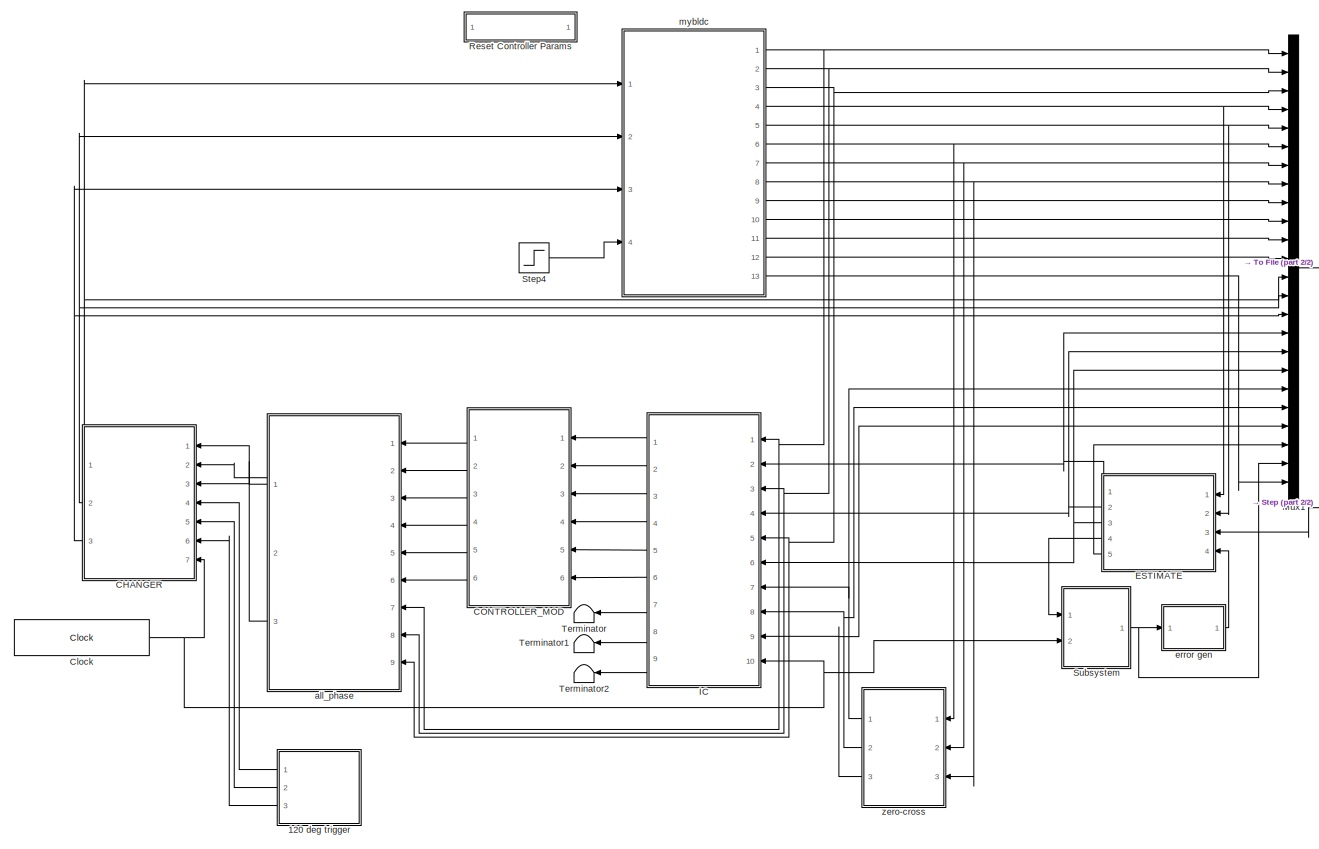
[diagram: root canvas - part 1/2, most of the canvas]
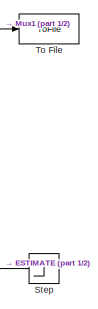
[diagram: root canvas - part 2/2, middle right region]
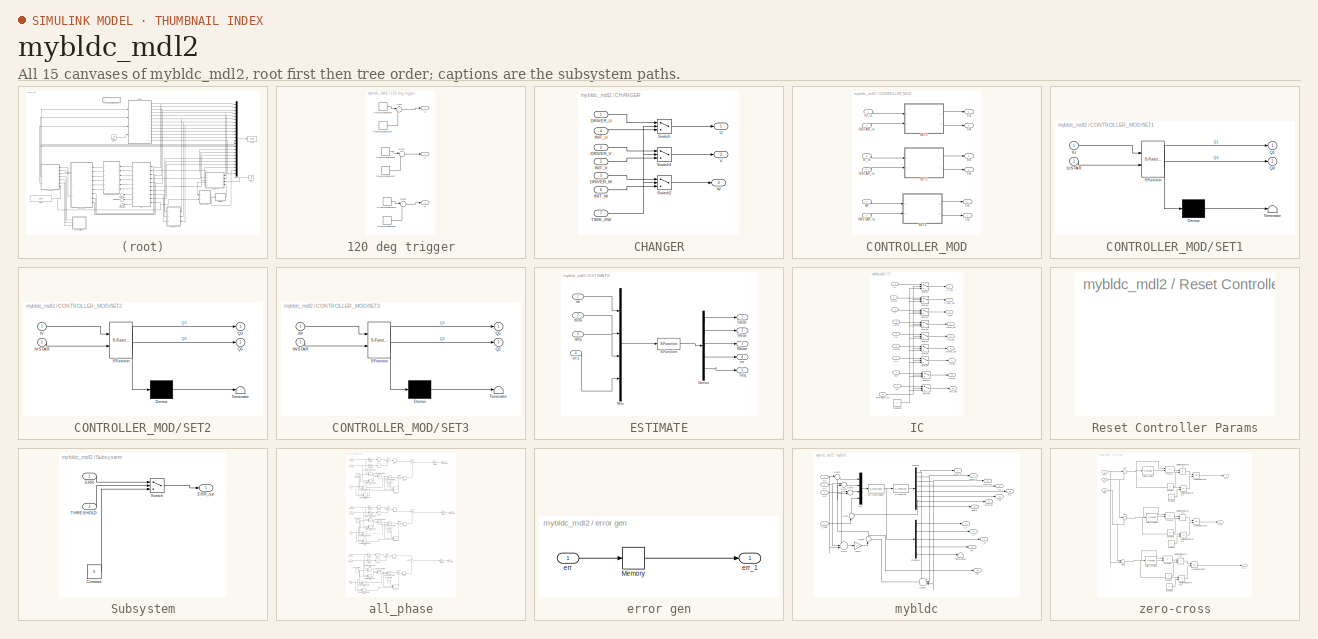
[diagram: thumbnail index - all 15 canvases of the model, root first then tree order]
MODEL mybldc_mdl2
KIND model
BLOCK [SubSystem] 120 deg trigger
  Ports = [0, 3]
  RequestExecContextInheritance = off
  SID = 1
BLOCK [DiscretePulseGenerator] 120 deg trigger/Pulse\nGenerator
  Amplitude = V
  Period = T
  PhaseDelay = T/3
  Ports = [0, 1]
  PulseType = Time based
  PulseWidth = 200/3
  SID = 2
BLOCK [DiscretePulseGenerator] 120 deg trigger/Pulse\nGenerator1
  Amplitude = -2*V
  Period = 2*T
  PhaseDelay = -2*T/3
  Ports = [0, 1]
  PulseType = Time based
  PulseWidth = 100/3
  SID = 3
BLOCK [DiscretePulseGenerator] 120 deg trigger/Pulse\nGenerator2
  Amplitude = V
  Period = T
  Ports = [0, 1]
  PulseType = Time based
  PulseWidth = 200/3
  SID = 4
BLOCK [DiscretePulseGenerator] 120 deg trigger/Pulse\nGenerator3
  Amplitude = -2*V
  Period = 2*T
  Ports = [0, 1]
  PulseType = Time based
  PulseWidth = 100/3
  SID = 5
BLOCK [DiscretePulseGenerator] 120 deg trigger/Pulse\nGenerator4
  Amplitude = V
  Period = T
  PhaseDelay = -T/3
  Ports = [0, 1]
  PulseType = Time based
  PulseWidth = 200/3
  SID = 6
BLOCK [DiscretePulseGenerator] 120 deg trigger/Pulse\nGenerator5
  Amplitude = -2*V
  Period = 2*T
  PhaseDelay = 2*T/3
  Ports = [0, 1]
  PulseType = Time based
  PulseWidth = 100/3
  SID = 7
BLOCK [Sum] 120 deg trigger/Sum
  IconShape = round
  Inputs = |++
  Ports = [2, 1]
  SID = 8
BLOCK [Sum] 120 deg trigger/Sum1
  IconShape = round
  Inputs = |++
  Ports = [2, 1]
  SID = 9
BLOCK [Sum] 120 deg trigger/Sum2
  IconShape = round
  Inputs = |++
  Ports = [2, 1]
  SID = 10
BLOCK [Outport] 120 deg trigger/U
  IconDisplay = Port number
  SID = 11
BLOCK [Outport] 120 deg trigger/V
  IconDisplay = Port number
  Port = 2
  SID = 12
BLOCK [Outport] 120 deg trigger/W
  IconDisplay = Port number
  Port = 3
  SID = 13
BLOCK [SubSystem] CHANGER
  Ports = [7, 3]
  RequestExecContextInheritance = off
  SID = 14
BLOCK [Inport] CHANGER/DRIVER_U
  IconDisplay = Port number
  SID = 15
BLOCK [Inport] CHANGER/DRIVER_V
  IconDisplay = Port number
  Port = 2
  SID = 16
BLOCK [Inport] CHANGER/DRIVER_W
  IconDisplay = Port number
  Port = 3
  SID = 17
BLOCK [Inport] CHANGER/INIT_U
  IconDisplay = Port number
  Port = 4
  SID = 18
BLOCK [Inport] CHANGER/INIT_V
  IconDisplay = Port number
  Port = 5
  SID = 19
BLOCK [Inport] CHANGER/INIT_W
  IconDisplay = Port number
  Port = 6
  SID = 20
BLOCK [Switch] CHANGER/Switch
  Criteria = u2 > Threshold
  InputSameDT = off
  SID = 22
  Threshold = T
BLOCK [Switch] CHANGER/Switch1
  Criteria = u2 > Threshold
  InputSameDT = off
  SID = 23
  Threshold = T
BLOCK [Switch] CHANGER/Switch2
  Criteria = u2 > Threshold
  InputSameDT = off
  SID = 24
  Threshold = T
BLOCK [Inport] CHANGER/TIME_SW
  IconDisplay = Port number
  Port = 7
  SID = 21
BLOCK [Outport] CHANGER/U
  IconDisplay = Port number
  SID = 25
BLOCK [Outport] CHANGER/V
  IconDisplay = Port number
  Port = 2
  SID = 26
BLOCK [Outport] CHANGER/W
  IconDisplay = Port number
  Port = 3
  SID = 27
BLOCK [SubSystem] CONTROLLER_MOD
  Ports = [6, 6]
  RequestExecContextInheritance = off
  SID = 28
BLOCK [Inport] CONTROLLER_MOD/IUSTAR_in
  IconDisplay = Port number
  Port = 2
  SID = 30
BLOCK [Inport] CONTROLLER_MOD/IU_in
  IconDisplay = Port number
  SID = 29
BLOCK [Inport] CONTROLLER_MOD/IVSTAR_in
  IconDisplay = Port number
  Port = 4
  SID = 32
BLOCK [Inport] CONTROLLER_MOD/IV_in
  IconDisplay = Port number
  Port = 3
  SID = 31
BLOCK [Inport] CONTROLLER_MOD/IW
  IconDisplay = Port number
  Port = 5
  SID = 33
BLOCK [Inport] CONTROLLER_MOD/IWSTAR_in
  IconDisplay = Port number
  Port = 6
  SID = 34
BLOCK [SubSystem] CONTROLLER_MOD/SET1
  ErrorFcn = Stateflow.Translate.translate
  PermitHierarchicalResolution = ExplicitOnly
  Ports = [2, 2]
  RequestExecContextInheritance = off
  SFBlockType = Chart
  SID = 35
  TreatAsAtomicUnit = on
BLOCK [Demux] CONTROLLER_MOD/SET1/ Demux 
  Outputs = 1
  Ports = [1, 1]
  SID = 35::9
BLOCK [S-Function] CONTROLLER_MOD/SET1/ SFunction 
  EnableBusSupport = off
  FunctionName = sf_sfun
  PortCounts = [2 3]
  Ports = [2, 3]
  SFcnIsStateOwnerBlock = off
  SFunctionDeploymentMode = off
  SID = 35::8
  Tag = Stateflow S-Function 1
BLOCK [Terminator] CONTROLLER_MOD/SET1/ Terminator 
  SID = 35::10
BLOCK [Inport] CONTROLLER_MOD/SET1/IU
  IconDisplay = Port number
  SID = 35::1
BLOCK [Inport] CONTROLLER_MOD/SET1/IUSTAR
  IconDisplay = Port number
  Port = 2
  SID = 35::2
BLOCK [Outport] CONTROLLER_MOD/SET1/Q1
  IconDisplay = Port number
  SID = 35::6
BLOCK [Outport] CONTROLLER_MOD/SET1/Q4
  IconDisplay = Port number
  Port = 2
  SID = 35::7
BLOCK [SubSystem] CONTROLLER_MOD/SET2
  ErrorFcn = Stateflow.Translate.translate
  PermitHierarchicalResolution = ExplicitOnly
  Ports = [2, 2]
  RequestExecContextInheritance = off
  SFBlockType = Chart
  SID = 36
  TreatAsAtomicUnit = on
BLOCK [Demux] CONTROLLER_MOD/SET2/ Demux 
  Outputs = 1
  Ports = [1, 1]
  SID = 36::9
BLOCK [S-Function] CONTROLLER_MOD/SET2/ SFunction 
  EnableBusSupport = off
  FunctionName = sf_sfun
  PortCounts = [2 3]
  Ports = [2, 3]
  SFcnIsStateOwnerBlock = off
  SFunctionDeploymentMode = off
  SID = 36::8
  Tag = Stateflow S-Function 2
BLOCK [Terminator] CONTROLLER_MOD/SET2/ Terminator 
  SID = 36::10
BLOCK [Inport] CONTROLLER_MOD/SET2/IV
  IconDisplay = Port number
  SID = 36::1
BLOCK [Inport] CONTROLLER_MOD/SET2/IVSTAR
  IconDisplay = Port number
  Port = 2
  SID = 36::2
BLOCK [Outport] CONTROLLER_MOD/SET2/Q3
  IconDisplay = Port number
  SID = 36::6
BLOCK [Outport] CONTROLLER_MOD/SET2/Q6
  IconDisplay = Port number
  Port = 2
  SID = 36::7
BLOCK [SubSystem] CONTROLLER_MOD/SET3
  ErrorFcn = Stateflow.Translate.translate
  PermitHierarchicalResolution = ExplicitOnly
  Ports = [2, 2]
  RequestExecContextInheritance = off
  SFBlockType = Chart
  SID = 37
  TreatAsAtomicUnit = on
BLOCK [Demux] CONTROLLER_MOD/SET3/ Demux 
  Outputs = 1
  Ports = [1, 1]
  SID = 37::9
BLOCK [S-Function] CONTROLLER_MOD/SET3/ SFunction 
  EnableBusSupport = off
  FunctionName = sf_sfun
  PortCounts = [2 3]
  Ports = [2, 3]
  SFcnIsStateOwnerBlock = off
  SFunctionDeploymentMode = off
  SID = 37::8
  Tag = Stateflow S-Function 3
BLOCK [Terminator] CONTROLLER_MOD/SET3/ Terminator 
  SID = 37::10
BLOCK [Inport] CONTROLLER_MOD/SET3/IW
  IconDisplay = Port number
  SID = 37::1
BLOCK [Inport] CONTROLLER_MOD/SET3/IWSTAR
  IconDisplay = Port number
  Port = 2
  SID = 37::2
BLOCK [Outport] CONTROLLER_MOD/SET3/Q2
  IconDisplay = Port number
  Port = 2
  SID = 37::7
BLOCK [Outport] CONTROLLER_MOD/SET3/Q5
  IconDisplay = Port number
  SID = 37::6
BLOCK [Outport] CONTROLLER_MOD/Tr1
  IconDisplay = Port number
  SID = 38
BLOCK [Outport] CONTROLLER_MOD/Tr2
  IconDisplay = Port number
  Port = 2
  SID = 39
BLOCK [Outport] CONTROLLER_MOD/Tr3
  IconDisplay = Port number
  Port = 3
  SID = 40
BLOCK [Outport] CONTROLLER_MOD/Tr4
  IconDisplay = Port number
  Port = 4
  SID = 41
BLOCK [Outport] CONTROLLER_MOD/Tr5
  IconDisplay = Port number
  Port = 5
  SID = 42
BLOCK [Outport] CONTROLLER_MOD/Tr6
  IconDisplay = Port number
  Port = 6
  SID = 43
BLOCK [Clock] Clock
  Decimation = 1
  DisplayTime = on
  SID = 44
BLOCK [SubSystem] ESTIMATE
  Ports = [4, 5]
  RequestExecContextInheritance = off
  SID = 45
BLOCK [Demux] ESTIMATE/Demux
  Outputs = 5
  Ports = [1, 5]
  SID = 50
BLOCK [Outport] ESTIMATE/IUstar
  IconDisplay = Port number
  SID = 53
BLOCK [Outport] ESTIMATE/IVstar
  IconDisplay = Port number
  Port = 2
  SID = 54
BLOCK [Outport] ESTIMATE/IWstar
  IconDisplay = Port number
  Port = 3
  SID = 55
BLOCK [Mux] ESTIMATE/Mux
  DisplayOption = bar
  Ports = [4, 1]
  SID = 51
BLOCK [S-Function] ESTIMATE/S-Function
  EnableBusSupport = off
  FunctionName = calc_core
  Parameters = J,DF,N,BM,Rr,Rl,delta,KP,KI,KD,basecurr
  Ports = [1, 1]
  SFcnIsStateOwnerBlock = off
  SFunctionDeploymentMode = off
  SID = 52
BLOCK [Outport] ESTIMATE/Treq
  IconDisplay = Port number
  Port = 5
  SID = 57
BLOCK [Outport] ESTIMATE/err
  IconDisplay = Port number
  Port = 4
  SID = 56
BLOCK [Inport] ESTIMATE/err-1
  IconDisplay = Port number
  Port = 4
  SID = 49
BLOCK [Inport] ESTIMATE/theta
  IconDisplay = Port number
  Port = 2
  SID = 47
BLOCK [Inport] ESTIMATE/wn
  IconDisplay = Port number
  SID = 46
BLOCK [Inport] ESTIMATE/wreq
  IconDisplay = Port number
  Port = 3
  SID = 48
BLOCK [SubSystem] IC
  Ports = [10, 9]
  RequestExecContextInheritance = off
  SID = 58
BLOCK [Constant] IC/Constant
  SID = 69
  Value = 0
BLOCK [Inport] IC/IU
  IconDisplay = Port number
  SID = 59
BLOCK [Outport] IC/IU_out
  IconDisplay = Port number
  SID = 79
BLOCK [Inport] IC/IUstar
  IconDisplay = Port number
  Port = 2
  SID = 60
BLOCK [Outport] IC/IUstar_out
  IconDisplay = Port number
  Port = 2
  SID = 80
BLOCK [Inport] IC/IV
  IconDisplay = Port number
  Port = 3
  SID = 61
BLOCK [Outport] IC/IV_out
  IconDisplay = Port number
  Port = 3
  SID = 81
BLOCK [Inport] IC/IVstar
  IconDisplay = Port number
  Port = 4
  SID = 62
BLOCK [Outport] IC/IVstar_out
  IconDisplay = Port number
  Port = 4
  SID = 82
BLOCK [Inport] IC/IW
  IconDisplay = Port number
  Port = 5
  SID = 63
BLOCK [Outport] IC/IW_out
  IconDisplay = Port number
  Port = 5
  SID = 83
BLOCK [Inport] IC/IWstar
  IconDisplay = Port number
  Port = 6
  SID = 64
BLOCK [Outport] IC/IWstar_out
  IconDisplay = Port number
  Port = 6
  SID = 84
BLOCK [Switch] IC/Switch
  InputSameDT = off
  SID = 70
  Threshold = T
BLOCK [Switch] IC/Switch1
  InputSameDT = off
  SID = 71
  Threshold = T
BLOCK [Switch] IC/Switch2
  InputSameDT = off
  SID = 72
  Threshold = T
BLOCK [Switch] IC/Switch3
  InputSameDT = off
  SID = 73
  Threshold = T
BLOCK [Switch] IC/Switch4
  InputSameDT = off
  SID = 74
  Threshold = T
BLOCK [Switch] IC/Switch5
  InputSameDT = off
  SID = 75
  Threshold = T
BLOCK [Switch] IC/Switch6
  InputSameDT = off
  SID = 76
  Threshold = T
BLOCK [Switch] IC/Switch7
  InputSameDT = off
  SID = 77
  Threshold = T
BLOCK [Switch] IC/Switch8
  InputSameDT = off
  SID = 78
  Threshold = T
BLOCK [Inport] IC/THRESHOLD
  IconDisplay = Port number
  Port = 10
  SID = 68
BLOCK [Inport] IC/UV
  IconDisplay = Port number
  Port = 7
  SID = 65
BLOCK [Outport] IC/UV_out
  IconDisplay = Port number
  Port = 7
  SID = 85
BLOCK [Inport] IC/VW
  IconDisplay = Port number
  Port = 8
  SID = 66
BLOCK [Outport] IC/VW_out
  IconDisplay = Port number
  Port = 8
  SID = 86
BLOCK [Inport] IC/WU
  IconDisplay = Port number
  Port = 9
  SID = 67
BLOCK [Outport] IC/WU_out
  IconDisplay = Port number
  Port = 9
  SID = 87
BLOCK [Mux] Mux1
  DisplayOption = bar
  Inputs = 24
  Ports = [24, 1]
  SID = 88
BLOCK [SubSystem] Reset Controller Params
  OpenFcn = mybldc2([],[],[],'reset',find_system(get_param(gcs,'Handle'),'LookUnderMasks','all','Tag','PPC'));
  Ports = []
  RequestExecContextInheritance = off
  SID = 89
BLOCK [Step] Step
  After = 75
  SID = 90
  SampleTime = 0
  Time = 0.01
BLOCK [Step] Step4
  After = 0
  SID = 91
  SampleTime = 0
  Time = 0.05
BLOCK [SubSystem] Subsystem
  Ports = [2, 1]
  RequestExecContextInheritance = off
  SID = 92
BLOCK [Constant] Subsystem/Constant
  SID = 95
  Value = 0
BLOCK [Inport] Subsystem/ERR
  IconDisplay = Port number
  SID = 93
BLOCK [Outport] Subsystem/ERR_out
  IconDisplay = Port number
  SID = 97
BLOCK [Switch] Subsystem/Switch
  InputSameDT = off
  SID = 96
  Threshold = T
BLOCK [Inport] Subsystem/THRESHOLD
  IconDisplay = Port number
  Port = 2
  SID = 94
BLOCK [Terminator] Terminator
  SID = 98
BLOCK [Terminator] Terminator1
  SID = 99
BLOCK [Terminator] Terminator2
  SID = 100
BLOCK [ToFile] To File
  Filename = result
  MatrixName = res
  Ports = [1]
  SID = 101
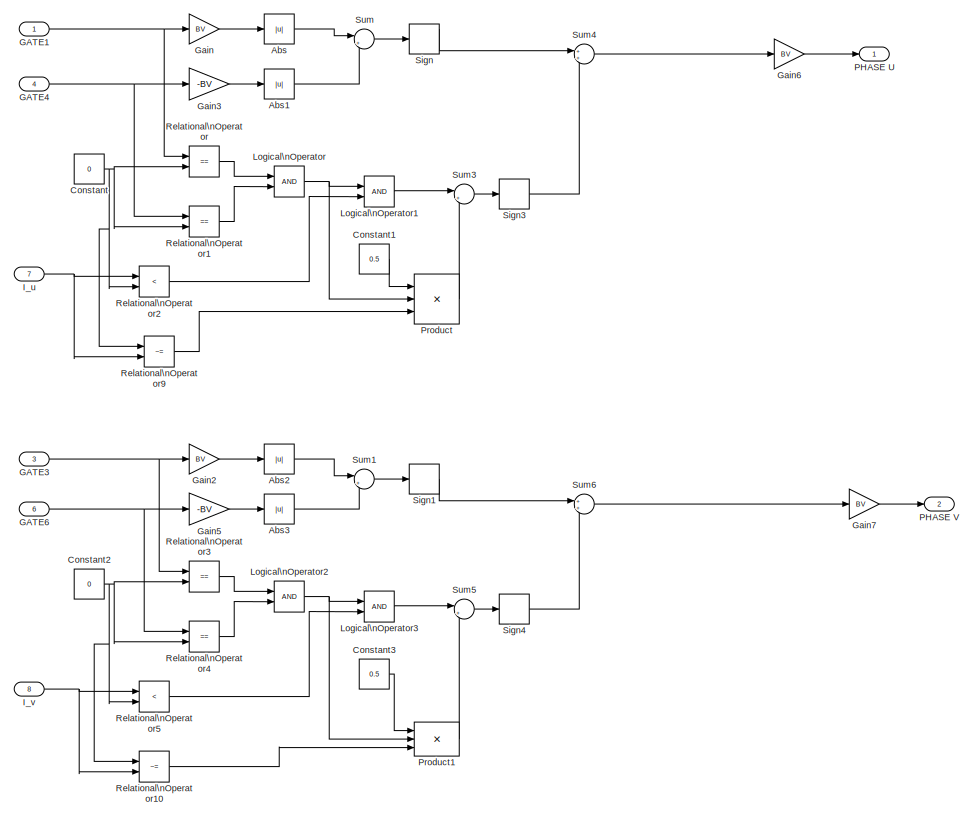
[diagram: all_phase - part 1/2, full width, middle band]
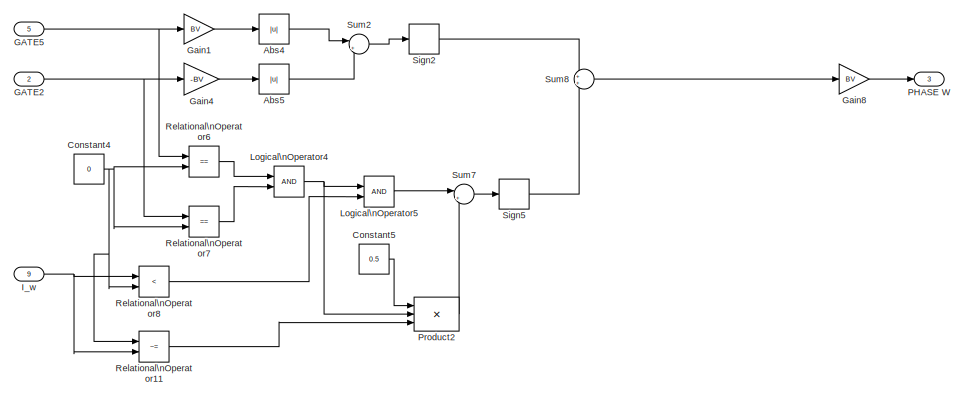
[diagram: all_phase - part 2/2, full width, bottom band]
BLOCK [SubSystem] all_phase
  Ports = [9, 3]
  RequestExecContextInheritance = off
  SID = 102
BLOCK [Abs] all_phase/Abs
  SID = 112
BLOCK [Abs] all_phase/Abs1
  SID = 113
BLOCK [Abs] all_phase/Abs2
  SID = 114
BLOCK [Abs] all_phase/Abs3
  SID = 115
BLOCK [Abs] all_phase/Abs4
  SID = 116
BLOCK [Abs] all_phase/Abs5
  SID = 117
BLOCK [Constant] all_phase/Constant
  SID = 118
  Value = 0
BLOCK [Constant] all_phase/Constant1
  SID = 119
  Value = 0.5
BLOCK [Constant] all_phase/Constant2
  SID = 120
  Value = 0
BLOCK [Constant] all_phase/Constant3
  SID = 121
  Value = 0.5
BLOCK [Constant] all_phase/Constant4
  SID = 122
  Value = 0
BLOCK [Constant] all_phase/Constant5
  SID = 123
  Value = 0.5
BLOCK [Inport] all_phase/GATE1
  IconDisplay = Port number
  SID = 103
BLOCK [Inport] all_phase/GATE2
  IconDisplay = Port number
  Port = 2
  SID = 104
BLOCK [Inport] all_phase/GATE3
  IconDisplay = Port number
  Port = 3
  SID = 105
BLOCK [Inport] all_phase/GATE4
  IconDisplay = Port number
  Port = 4
  SID = 106
BLOCK [Inport] all_phase/GATE5
  IconDisplay = Port number
  Port = 5
  SID = 107
BLOCK [Inport] all_phase/GATE6
  IconDisplay = Port number
  Port = 6
  SID = 108
BLOCK [Gain] all_phase/Gain
  Gain = BV
  SID = 124
BLOCK [Gain] all_phase/Gain1
  Gain = BV
  SID = 125
BLOCK [Gain] all_phase/Gain2
  Gain = BV
  SID = 126
BLOCK [Gain] all_phase/Gain3
  Gain = -BV
  SID = 127
BLOCK [Gain] all_phase/Gain4
  Gain = -BV
  SID = 128
BLOCK [Gain] all_phase/Gain5
  Gain = -BV
  SID = 129
BLOCK [Gain] all_phase/Gain6
  Gain = BV
  SID = 130
BLOCK [Gain] all_phase/Gain7
  Gain = BV
  SID = 131
BLOCK [Gain] all_phase/Gain8
  Gain = BV
  SID = 132
BLOCK [Inport] all_phase/I_u
  IconDisplay = Port number
  Port = 7
  SID = 109
BLOCK [Inport] all_phase/I_v
  IconDisplay = Port number
  Port = 8
  SID = 110
BLOCK [Inport] all_phase/I_w
  IconDisplay = Port number
  Port = 9
  SID = 111
BLOCK [Logic] all_phase/Logical\nOperator
  AllPortsSameDT = off
  Ports = [2, 1]
  SID = 133
BLOCK [Logic] all_phase/Logical\nOperator1
  AllPortsSameDT = off
  Ports = [2, 1]
  SID = 134
BLOCK [Logic] all_phase/Logical\nOperator2
  AllPortsSameDT = off
  Ports = [2, 1]
  SID = 135
BLOCK [Logic] all_phase/Logical\nOperator3
  AllPortsSameDT = off
  Ports = [2, 1]
  SID = 136
BLOCK [Logic] all_phase/Logical\nOperator4
  AllPortsSameDT = off
  Ports = [2, 1]
  SID = 137
BLOCK [Logic] all_phase/Logical\nOperator5
  AllPortsSameDT = off
  Ports = [2, 1]
  SID = 138
BLOCK [Outport] all_phase/PHASE U
  IconDisplay = Port number
  SID = 169
BLOCK [Outport] all_phase/PHASE V
  IconDisplay = Port number
  Port = 2
  SID = 170
BLOCK [Outport] all_phase/PHASE W
  IconDisplay = Port number
  Port = 3
  SID = 171
BLOCK [Product] all_phase/Product
  InputSameDT = off
  Inputs = 3
  Ports = [3, 1]
  RndMeth = Floor
  SID = 139
BLOCK [Product] all_phase/Product1
  InputSameDT = off
  Inputs = 3
  Ports = [3, 1]
  RndMeth = Floor
  SID = 140
BLOCK [Product] all_phase/Product2
  InputSameDT = off
  Inputs = 3
  Ports = [3, 1]
  RndMeth = Floor
  SID = 141
BLOCK [RelationalOperator] all_phase/Relational\nOperator
  InputSameDT = off
  Operator = ==
  Ports = [2, 1]
  SID = 142
BLOCK [RelationalOperator] all_phase/Relational\nOperator1
  InputSameDT = off
  Operator = ==
  Ports = [2, 1]
  SID = 143
BLOCK [RelationalOperator] all_phase/Relational\nOperator10
  InputSameDT = off
  Operator = ~=
  Ports = [2, 1]
  SID = 144
BLOCK [RelationalOperator] all_phase/Relational\nOperator11
  InputSameDT = off
  Operator = ~=
  Ports = [2, 1]
  SID = 145
BLOCK [RelationalOperator] all_phase/Relational\nOperator2
  InputSameDT = off
  Operator = <
  Ports = [2, 1]
  SID = 146
BLOCK [RelationalOperator] all_phase/Relational\nOperator3
  InputSameDT = off
  Operator = ==
  Ports = [2, 1]
  SID = 147
BLOCK [RelationalOperator] all_phase/Relational\nOperator4
  InputSameDT = off
  Operator = ==
  Ports = [2, 1]
  SID = 148
BLOCK [RelationalOperator] all_phase/Relational\nOperator5
  InputSameDT = off
  Operator = <
  Ports = [2, 1]
  SID = 149
BLOCK [RelationalOperator] all_phase/Relational\nOperator6
  InputSameDT = off
  Operator = ==
  Ports = [2, 1]
  SID = 150
BLOCK [RelationalOperator] all_phase/Relational\nOperator7
  InputSameDT = off
  Operator = ==
  Ports = [2, 1]
  SID = 151
BLOCK [RelationalOperator] all_phase/Relational\nOperator8
  InputSameDT = off
  Operator = <
  Ports = [2, 1]
  SID = 152
BLOCK [RelationalOperator] all_phase/Relational\nOperator9
  InputSameDT = off
  Operator = ~=
  Ports = [2, 1]
  SID = 153
BLOCK [Signum] all_phase/Sign
  SID = 154
BLOCK [Signum] all_phase/Sign1
  SID = 155
BLOCK [Signum] all_phase/Sign2
  SID = 156
BLOCK [Signum] all_phase/Sign3
  SID = 157
BLOCK [Signum] all_phase/Sign4
  SID = 158
BLOCK [Signum] all_phase/Sign5
  SID = 159
BLOCK [Sum] all_phase/Sum
  IconShape = round
  Inputs = |+-
  Ports = [2, 1]
  SID = 160
BLOCK [Sum] all_phase/Sum1
  IconShape = round
  Inputs = |+-
  Ports = [2, 1]
  SID = 161
BLOCK [Sum] all_phase/Sum2
  IconShape = round
  Inputs = |+-
  Ports = [2, 1]
  SID = 162
BLOCK [Sum] all_phase/Sum3
  IconShape = round
  Inputs = |+-
  Ports = [2, 1]
  SID = 163
BLOCK [Sum] all_phase/Sum4
  IconShape = round
  Ports = [2, 1]
  SID = 164
BLOCK [Sum] all_phase/Sum5
  IconShape = round
  Inputs = |+-
  Ports = [2, 1]
  SID = 165
BLOCK [Sum] all_phase/Sum6
  IconShape = round
  Ports = [2, 1]
  SID = 166
BLOCK [Sum] all_phase/Sum7
  IconShape = round
  Inputs = |+-
  Ports = [2, 1]
  SID = 167
BLOCK [Sum] all_phase/Sum8
  IconShape = round
  Ports = [2, 1]
  SID = 168
BLOCK [SubSystem] error gen
  Ports = [1, 1]
  RequestExecContextInheritance = off
  SID = 172
BLOCK [Memory] error gen/Memory
  InheritSampleTime = on
  SID = 174
BLOCK [Inport] error gen/err
  IconDisplay = Port number
  SID = 173
BLOCK [Outport] error gen/err_1
  IconDisplay = Port number
  SID = 175
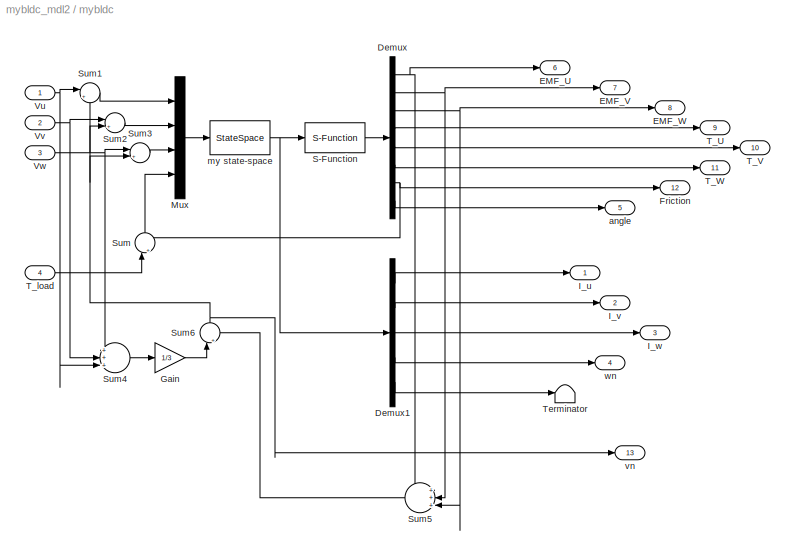
BLOCK [SubSystem] mybldc
  Ports = [4, 13]
  RequestExecContextInheritance = off
  SID = 176
BLOCK [Demux] mybldc/Demux
  Outputs = 8
  Ports = [1, 8]
  SID = 181
BLOCK [Demux] mybldc/Demux1
  Outputs = 5
  Ports = [1, 5]
  SID = 182
BLOCK [Outport] mybldc/EMF_U
  IconDisplay = Port number
  Port = 6
  SID = 200
BLOCK [Outport] mybldc/EMF_V
  IconDisplay = Port number
  Port = 7
  SID = 201
BLOCK [Outport] mybldc/EMF_W
  IconDisplay = Port number
  Port = 8
  SID = 202
BLOCK [Outport] mybldc/Friction
  IconDisplay = Port number
  Port = 12
  SID = 206
BLOCK [Gain] mybldc/Gain
  Gain = 1/3
  SID = 183
BLOCK [Outport] mybldc/I_u
  IconDisplay = Port number
  SID = 195
BLOCK [Outport] mybldc/I_v
  IconDisplay = Port number
  Port = 2
  SID = 196
BLOCK [Outport] mybldc/I_w
  IconDisplay = Port number
  Port = 3
  SID = 197
BLOCK [Mux] mybldc/Mux
  DisplayOption = bar
  Ports = [4, 1]
  SID = 184
BLOCK [S-Function] mybldc/S-Function
  EnableBusSupport = off
  FunctionName = MYBLDC2
  Parameters = N,R,L,M,BM,Rl,Rr,DF,J,P,F0,Fs
  Ports = [1, 1]
  SFcnIsStateOwnerBlock = off
  SFunctionDeploymentMode = off
  SID = 185
BLOCK [Sum] mybldc/Sum
  IconShape = round
  Inputs = |++
  Ports = [2, 1]
  SID = 186
BLOCK [Sum] mybldc/Sum1
  IconShape = round
  Inputs = |+-
  Ports = [2, 1]
  SID = 187
BLOCK [Sum] mybldc/Sum2
  IconShape = round
  Inputs = |+-
  Ports = [2, 1]
  SID = 188
BLOCK [Sum] mybldc/Sum3
  IconShape = round
  Inputs = |+-
  Ports = [2, 1]
  SID = 189
BLOCK [Sum] mybldc/Sum4
  IconShape = round
  Inputs = +++
  Ports = [3, 1]
  SID = 190
BLOCK [Sum] mybldc/Sum5
  IconShape = round
  Inputs = +++
  Ports = [3, 1]
  SID = 191
BLOCK [Sum] mybldc/Sum6
  IconShape = round
  Inputs = |+-
  Ports = [2, 1]
  SID = 192
BLOCK [Outport] mybldc/T_U
  IconDisplay = Port number
  Port = 9
  SID = 203
BLOCK [Outport] mybldc/T_V
  IconDisplay = Port number
  Port = 10
  SID = 204
BLOCK [Outport] mybldc/T_W
  IconDisplay = Port number
  Port = 11
  SID = 205
BLOCK [Inport] mybldc/T_load
  IconDisplay = Port number
  Port = 4
  SID = 180
BLOCK [Terminator] mybldc/Terminator
  SID = 193
BLOCK [Inport] mybldc/Vu
  IconDisplay = Port number
  SID = 177
BLOCK [Inport] mybldc/Vv
  IconDisplay = Port number
  Port = 2
  SID = 178
BLOCK [Inport] mybldc/Vw
  IconDisplay = Port number
  Port = 3
  SID = 179
BLOCK [Outport] mybldc/angle
  IconDisplay = Port number
  Port = 5
  SID = 199
BLOCK [StateSpace] mybldc/my state-space
  A = [ -1.658768e+002  0 0 1.604892e-016 0; 0  -1.658768e+002 0 1.161137e+001 0; 0  0 -1.658768e+002 -1.161137e+001 0; -3.386321e-015  -245 245 -10 0; 0  0 0 2 0]
  B = [236.96 0 0 0; 0 236.96 0 0; 0 0 236.96 0; 0 0 0 -5000; 0 0 0 0]
  C = [1 0 0 0 0;0 1 0 0 0;0 0 1 0 0; 0 0 0 1 0;0 0 0 0 1]
  D = [0 0 0 0 ; 0 0 0 0; 0 0 0 0; 0 0 0 0; 0 0 0 0]
  InitialCondition = [0 0 0 0 0]
  Ports = [1, 1]
  SID = 194
BLOCK [Outport] mybldc/vn
  IconDisplay = Port number
  Port = 13
  SID = 207
BLOCK [Outport] mybldc/wn
  IconDisplay = Port number
  Port = 4
  SID = 198
BLOCK [SubSystem] zero-cross
  Ports = [3, 3]
  RequestExecContextInheritance = off
  SID = 208
BLOCK [Constant] zero-cross/Constant
  SID = 212
  Value = 0
BLOCK [Constant] zero-cross/Constant1
  SID = 213
  Value = 0
BLOCK [Constant] zero-cross/Constant2
  SID = 214
  Value = 0
BLOCK [Constant] zero-cross/Constant3
  SID = 215
  Value = 0
BLOCK [Constant] zero-cross/Constant4
  SID = 216
  Value = 0
BLOCK [Constant] zero-cross/Constant5
  SID = 217
  Value = 0
BLOCK [Inport] zero-cross/EU
  IconDisplay = Port number
  SID = 209
BLOCK [Inport] zero-cross/EV
  IconDisplay = Port number
  Port = 2
  SID = 210
BLOCK [Inport] zero-cross/EW
  IconDisplay = Port number
  Port = 3
  SID = 211
BLOCK [Logic] zero-cross/Logical\nOperator
  Operator = OR
  Ports = [2, 1]
  SID = 218
BLOCK [Logic] zero-cross/Logical\nOperator1
  Operator = OR
  Ports = [2, 1]
  SID = 219
BLOCK [Logic] zero-cross/Logical\nOperator2
  Operator = OR
  Ports = [2, 1]
  SID = 220
BLOCK [S-Function] zero-cross/M-file S-Function
  EnableBusSupport = off
  FunctionName = delay
  Ports = [1, 1]
  SFcnIsStateOwnerBlock = off
  SFunctionDeploymentMode = off
  SID = 221
BLOCK [S-Function] zero-cross/M-file S-Function1
  EnableBusSupport = off
  FunctionName = delay
  Ports = [1, 1]
  SFcnIsStateOwnerBlock = off
  SFunctionDeploymentMode = off
  SID = 222
BLOCK [S-Function] zero-cross/M-file S-Function2
  EnableBusSupport = off
  FunctionName = delay
  Ports = [1, 1]
  SFcnIsStateOwnerBlock = off
  SFunctionDeploymentMode = off
  SID = 223
BLOCK [Product] zero-cross/Product
  Ports = [2, 1]
  RndMeth = Floor
  SID = 224
BLOCK [Product] zero-cross/Product1
  Ports = [2, 1]
  RndMeth = Floor
  SID = 225
BLOCK [Product] zero-cross/Product2
  Ports = [2, 1]
  RndMeth = Floor
  SID = 226
BLOCK [RelationalOperator] zero-cross/Relational\nOperator
  Operator = <
  Ports = [2, 1]
  SID = 227
BLOCK [RelationalOperator] zero-cross/Relational\nOperator1
  Operator = ==
  Ports = [2, 1]
  SID = 228
BLOCK [RelationalOperator] zero-cross/Relational\nOperator2
  Operator = <
  Ports = [2, 1]
  SID = 229
BLOCK [RelationalOperator] zero-cross/Relational\nOperator3
  Operator = ==
  Ports = [2, 1]
  SID = 230
BLOCK [RelationalOperator] zero-cross/Relational\nOperator4
  Operator = <
  Ports = [2, 1]
  SID = 231
BLOCK [RelationalOperator] zero-cross/Relational\nOperator5
  Operator = ==
  Ports = [2, 1]
  SID = 232
BLOCK [Sum] zero-cross/Sum
  IconShape = round
  Inputs = |+-
  Ports = [2, 1]
  SID = 233
BLOCK [Sum] zero-cross/Sum1
  IconShape = round
  Inputs = |+-
  Ports = [2, 1]
  SID = 234
BLOCK [Sum] zero-cross/Sum2
  IconShape = round
  Inputs = |+-
  Ports = [2, 1]
  SID = 235
BLOCK [Outport] zero-cross/U-V
  IconDisplay = Port number
  SID = 236
BLOCK [Outport] zero-cross/V-W
  IconDisplay = Port number
  Port = 2
  SID = 237
BLOCK [Outport] zero-cross/W-U
  IconDisplay = Port number
  Port = 3
  SID = 238
LINE 120 deg trigger/Pulse\nGenerator1:1 -> 120 deg trigger/Sum:2
LINE 120 deg trigger/Pulse\nGenerator2:1 -> 120 deg trigger/Sum1:1
LINE 120 deg trigger/Pulse\nGenerator3:1 -> 120 deg trigger/Sum1:2
LINE 120 deg trigger/Pulse\nGenerator4:1 -> 120 deg trigger/Sum2:1
LINE 120 deg trigger/Pulse\nGenerator5:1 -> 120 deg trigger/Sum2:2
LINE 120 deg trigger/Pulse\nGenerator:1 -> 120 deg trigger/Sum:1
LINE 120 deg trigger/Sum1:1 -> 120 deg trigger/V:1
LINE 120 deg trigger/Sum2:1 -> 120 deg trigger/W:1
LINE 120 deg trigger/Sum:1 -> 120 deg trigger/U:1
LINE 120 deg trigger:1 -> CHANGER:4
LINE 120 deg trigger:2 -> CHANGER:5
LINE 120 deg trigger:3 -> CHANGER:6
LINE CHANGER/DRIVER_U:1 -> CHANGER/Switch:1
LINE CHANGER/DRIVER_V:1 -> CHANGER/Switch1:1
LINE CHANGER/DRIVER_W:1 -> CHANGER/Switch2:1
LINE CHANGER/INIT_U:1 -> CHANGER/Switch:3
LINE CHANGER/INIT_V:1 -> CHANGER/Switch1:3
LINE CHANGER/INIT_W:1 -> CHANGER/Switch2:3
LINE CHANGER/Switch1:1 -> CHANGER/V:1
LINE CHANGER/Switch2:1 -> CHANGER/W:1
LINE CHANGER/Switch:1 -> CHANGER/U:1
NET CHANGER/TIME_SW:1 -> CHANGER/Switch1:2, CHANGER/Switch2:2, CHANGER/Switch:2
NET CHANGER:1 -> Mux1:13, mybldc:1
NET CHANGER:2 -> Mux1:14, mybldc:2
NET CHANGER:3 -> Mux1:15, mybldc:3
LINE CONTROLLER_MOD/IUSTAR_in:1 -> CONTROLLER_MOD/SET1:2
LINE CONTROLLER_MOD/IU_in:1 -> CONTROLLER_MOD/SET1:1
LINE CONTROLLER_MOD/IVSTAR_in:1 -> CONTROLLER_MOD/SET2:2
LINE CONTROLLER_MOD/IV_in:1 -> CONTROLLER_MOD/SET2:1
LINE CONTROLLER_MOD/IW:1 -> CONTROLLER_MOD/SET3:1
LINE CONTROLLER_MOD/IWSTAR_in:1 -> CONTROLLER_MOD/SET3:2
LINE CONTROLLER_MOD/SET1/ Demux :1 -> CONTROLLER_MOD/SET1/ Terminator :1
LINE CONTROLLER_MOD/SET1/ SFunction :1 -> CONTROLLER_MOD/SET1/ Demux :1
LINE CONTROLLER_MOD/SET1/ SFunction :2 -> CONTROLLER_MOD/SET1/Q1:1
LINE CONTROLLER_MOD/SET1/ SFunction :3 -> CONTROLLER_MOD/SET1/Q4:1
LINE CONTROLLER_MOD/SET1/IU:1 -> CONTROLLER_MOD/SET1/ SFunction :1
LINE CONTROLLER_MOD/SET1/IUSTAR:1 -> CONTROLLER_MOD/SET1/ SFunction :2
LINE CONTROLLER_MOD/SET1:1 -> CONTROLLER_MOD/Tr1:1
LINE CONTROLLER_MOD/SET1:2 -> CONTROLLER_MOD/Tr4:1
LINE CONTROLLER_MOD/SET2/ Demux :1 -> CONTROLLER_MOD/SET2/ Terminator :1
LINE CONTROLLER_MOD/SET2/ SFunction :1 -> CONTROLLER_MOD/SET2/ Demux :1
LINE CONTROLLER_MOD/SET2/ SFunction :2 -> CONTROLLER_MOD/SET2/Q3:1
LINE CONTROLLER_MOD/SET2/ SFunction :3 -> CONTROLLER_MOD/SET2/Q6:1
LINE CONTROLLER_MOD/SET2/IV:1 -> CONTROLLER_MOD/SET2/ SFunction :1
LINE CONTROLLER_MOD/SET2/IVSTAR:1 -> CONTROLLER_MOD/SET2/ SFunction :2
LINE CONTROLLER_MOD/SET2:1 -> CONTROLLER_MOD/Tr3:1
LINE CONTROLLER_MOD/SET2:2 -> CONTROLLER_MOD/Tr6:1
LINE CONTROLLER_MOD/SET3/ Demux :1 -> CONTROLLER_MOD/SET3/ Terminator :1
LINE CONTROLLER_MOD/SET3/ SFunction :1 -> CONTROLLER_MOD/SET3/ Demux :1
LINE CONTROLLER_MOD/SET3/ SFunction :2 -> CONTROLLER_MOD/SET3/Q5:1
LINE CONTROLLER_MOD/SET3/ SFunction :3 -> CONTROLLER_MOD/SET3/Q2:1
LINE CONTROLLER_MOD/SET3/IW:1 -> CONTROLLER_MOD/SET3/ SFunction :1
LINE CONTROLLER_MOD/SET3/IWSTAR:1 -> CONTROLLER_MOD/SET3/ SFunction :2
LINE CONTROLLER_MOD/SET3:1 -> CONTROLLER_MOD/Tr5:1
LINE CONTROLLER_MOD/SET3:2 -> CONTROLLER_MOD/Tr2:1
LINE CONTROLLER_MOD:1 -> all_phase:1
LINE CONTROLLER_MOD:2 -> all_phase:2
LINE CONTROLLER_MOD:3 -> all_phase:3
LINE CONTROLLER_MOD:4 -> all_phase:4
LINE CONTROLLER_MOD:5 -> all_phase:5
LINE CONTROLLER_MOD:6 -> all_phase:6
NET Clock:1 -> CHANGER:7, IC:10, Subsystem:2
LINE ESTIMATE/Demux:1 -> ESTIMATE/IUstar:1
LINE ESTIMATE/Demux:2 -> ESTIMATE/IVstar:1
LINE ESTIMATE/Demux:3 -> ESTIMATE/IWstar:1
LINE ESTIMATE/Demux:4 -> ESTIMATE/err:1
LINE ESTIMATE/Demux:5 -> ESTIMATE/Treq:1
LINE ESTIMATE/Mux:1 -> ESTIMATE/S-Function:1
LINE ESTIMATE/S-Function:1 -> ESTIMATE/Demux:1
LINE ESTIMATE/err-1:1 -> ESTIMATE/Mux:4
LINE ESTIMATE/theta:1 -> ESTIMATE/Mux:2
LINE ESTIMATE/wn:1 -> ESTIMATE/Mux:1
LINE ESTIMATE/wreq:1 -> ESTIMATE/Mux:3
NET ESTIMATE:1 -> IC:2, Mux1:16
NET ESTIMATE:2 -> IC:4, Mux1:17
NET ESTIMATE:3 -> IC:6, Mux1:18
LINE ESTIMATE:4 -> Subsystem:1
LINE ESTIMATE:5 -> Mux1:22
NET IC/Constant:1 -> IC/Switch1:3, IC/Switch2:3, IC/Switch3:3, IC/Switch4:3, IC/Switch5:3, IC/Switch6:3, IC/Switch7:3, IC/Switch8:3, IC/Switch:3
LINE IC/IU:1 -> IC/Switch:1
LINE IC/IUstar:1 -> IC/Switch1:1
LINE IC/IV:1 -> IC/Switch2:1
LINE IC/IVstar:1 -> IC/Switch3:1
LINE IC/IW:1 -> IC/Switch4:1
LINE IC/IWstar:1 -> IC/Switch5:1
LINE IC/Switch1:1 -> IC/IUstar_out:1
LINE IC/Switch2:1 -> IC/IV_out:1
LINE IC/Switch3:1 -> IC/IVstar_out:1
LINE IC/Switch4:1 -> IC/IW_out:1
LINE IC/Switch5:1 -> IC/IWstar_out:1
LINE IC/Switch6:1 -> IC/UV_out:1
LINE IC/Switch7:1 -> IC/VW_out:1
LINE IC/Switch8:1 -> IC/WU_out:1
LINE IC/Switch:1 -> IC/IU_out:1
NET IC/THRESHOLD:1 -> IC/Switch1:2, IC/Switch2:2, IC/Switch3:2, IC/Switch4:2, IC/Switch5:2, IC/Switch6:2, IC/Switch7:2, IC/Switch8:2, IC/Switch:2
LINE IC/UV:1 -> IC/Switch6:1
LINE IC/VW:1 -> IC/Switch7:1
LINE IC/WU:1 -> IC/Switch8:1
LINE IC:1 -> CONTROLLER_MOD:1
LINE IC:2 -> CONTROLLER_MOD:2
LINE IC:3 -> CONTROLLER_MOD:3
LINE IC:4 -> CONTROLLER_MOD:4
LINE IC:5 -> CONTROLLER_MOD:5
LINE IC:6 -> CONTROLLER_MOD:6
LINE IC:7 -> Terminator:1
LINE IC:8 -> Terminator1:1
LINE IC:9 -> Terminator2:1
LINE Mux1:1 -> To File:1
LINE Step4:1 -> mybldc:4
LINE Step:1 -> ESTIMATE:3
LINE Subsystem/Constant:1 -> Subsystem/Switch:3
LINE Subsystem/ERR:1 -> Subsystem/Switch:1
LINE Subsystem/Switch:1 -> Subsystem/ERR_out:1
LINE Subsystem/THRESHOLD:1 -> Subsystem/Switch:2
NET Subsystem:1 -> Mux1:23, error gen:1
LINE all_phase/Abs1:1 -> all_phase/Sum:2
LINE all_phase/Abs2:1 -> all_phase/Sum1:1
LINE all_phase/Abs3:1 -> all_phase/Sum1:2
LINE all_phase/Abs4:1 -> all_phase/Sum2:1
LINE all_phase/Abs5:1 -> all_phase/Sum2:2
LINE all_phase/Abs:1 -> all_phase/Sum:1
LINE all_phase/Constant1:1 -> all_phase/Product:1
NET all_phase/Constant2:1 -> all_phase/Relational\nOperator10:1, all_phase/Relational\nOperator3:2, all_phase/Relational\nOperator4:2, all_phase/Relational\nOperator5:2
LINE all_phase/Constant3:1 -> all_phase/Product1:1
NET all_phase/Constant4:1 -> all_phase/Relational\nOperator11:1, all_phase/Relational\nOperator6:2, all_phase/Relational\nOperator7:2, all_phase/Relational\nOperator8:2
LINE all_phase/Constant5:1 -> all_phase/Product2:1
NET all_phase/Constant:1 -> all_phase/Relational\nOperator1:2, all_phase/Relational\nOperator2:2, all_phase/Relational\nOperator9:1, all_phase/Relational\nOperator:2
NET all_phase/GATE1:1 -> all_phase/Gain:1, all_phase/Relational\nOperator:1
NET all_phase/GATE2:1 -> all_phase/Gain4:1, all_phase/Relational\nOperator7:1
NET all_phase/GATE3:1 -> all_phase/Gain2:1, all_phase/Relational\nOperator3:1
NET all_phase/GATE4:1 -> all_phase/Gain3:1, all_phase/Relational\nOperator1:1
NET all_phase/GATE5:1 -> all_phase/Gain1:1, all_phase/Relational\nOperator6:1
NET all_phase/GATE6:1 -> all_phase/Gain5:1, all_phase/Relational\nOperator4:1
LINE all_phase/Gain1:1 -> all_phase/Abs4:1
LINE all_phase/Gain2:1 -> all_phase/Abs2:1
LINE all_phase/Gain3:1 -> all_phase/Abs1:1
LINE all_phase/Gain4:1 -> all_phase/Abs5:1
LINE all_phase/Gain5:1 -> all_phase/Abs3:1
LINE all_phase/Gain6:1 -> all_phase/PHASE U:1
LINE all_phase/Gain7:1 -> all_phase/PHASE V:1
LINE all_phase/Gain8:1 -> all_phase/PHASE W:1
LINE all_phase/Gain:1 -> all_phase/Abs:1
NET all_phase/I_u:1 -> all_phase/Relational\nOperator2:1, all_phase/Relational\nOperator9:2
NET all_phase/I_v:1 -> all_phase/Relational\nOperator10:2, all_phase/Relational\nOperator5:1
NET all_phase/I_w:1 -> all_phase/Relational\nOperator11:2, all_phase/Relational\nOperator8:1
LINE all_phase/Logical\nOperator1:1 -> all_phase/Sum3:1
NET all_phase/Logical\nOperator2:1 -> all_phase/Logical\nOperator3:1, all_phase/Product1:2
LINE all_phase/Logical\nOperator3:1 -> all_phase/Sum5:1
NET all_phase/Logical\nOperator4:1 -> all_phase/Logical\nOperator5:1, all_phase/Product2:2
LINE all_phase/Logical\nOperator5:1 -> all_phase/Sum7:1
NET all_phase/Logical\nOperator:1 -> all_phase/Logical\nOperator1:1, all_phase/Product:2
LINE all_phase/Product1:1 -> all_phase/Sum5:2
LINE all_phase/Product2:1 -> all_phase/Sum7:2
LINE all_phase/Product:1 -> all_phase/Sum3:2
LINE all_phase/Relational\nOperator10:1 -> all_phase/Product1:3
LINE all_phase/Relational\nOperator11:1 -> all_phase/Product2:3
LINE all_phase/Relational\nOperator1:1 -> all_phase/Logical\nOperator:2
LINE all_phase/Relational\nOperator2:1 -> all_phase/Logical\nOperator1:2
LINE all_phase/Relational\nOperator3:1 -> all_phase/Logical\nOperator2:1
LINE all_phase/Relational\nOperator4:1 -> all_phase/Logical\nOperator2:2
LINE all_phase/Relational\nOperator5:1 -> all_phase/Logical\nOperator3:2
LINE all_phase/Relational\nOperator6:1 -> all_phase/Logical\nOperator4:1
LINE all_phase/Relational\nOperator7:1 -> all_phase/Logical\nOperator4:2
LINE all_phase/Relational\nOperator8:1 -> all_phase/Logical\nOperator5:2
LINE all_phase/Relational\nOperator9:1 -> all_phase/Product:3
LINE all_phase/Relational\nOperator:1 -> all_phase/Logical\nOperator:1
LINE all_phase/Sign1:1 -> all_phase/Sum6:1
LINE all_phase/Sign2:1 -> all_phase/Sum8:1
LINE all_phase/Sign3:1 -> all_phase/Sum4:2
LINE all_phase/Sign4:1 -> all_phase/Sum6:2
LINE all_phase/Sign5:1 -> all_phase/Sum8:2
LINE all_phase/Sign:1 -> all_phase/Sum4:1
LINE all_phase/Sum1:1 -> all_phase/Sign1:1
LINE all_phase/Sum2:1 -> all_phase/Sign2:1
LINE all_phase/Sum3:1 -> all_phase/Sign3:1
LINE all_phase/Sum4:1 -> all_phase/Gain6:1
LINE all_phase/Sum5:1 -> all_phase/Sign4:1
LINE all_phase/Sum6:1 -> all_phase/Gain7:1
LINE all_phase/Sum7:1 -> all_phase/Sign5:1
LINE all_phase/Sum8:1 -> all_phase/Gain8:1
LINE all_phase/Sum:1 -> all_phase/Sign:1
LINE all_phase:1 -> CHANGER:1
LINE all_phase:2 -> CHANGER:2
LINE all_phase:3 -> CHANGER:3
LINE error gen/Memory:1 -> error gen/err_1:1
LINE error gen/err:1 -> error gen/Memory:1
LINE error gen:1 -> ESTIMATE:4
LINE mybldc/Demux1:1 -> mybldc/I_u:1
LINE mybldc/Demux1:2 -> mybldc/I_v:1
LINE mybldc/Demux1:3 -> mybldc/I_w:1
LINE mybldc/Demux1:4 -> mybldc/wn:1
LINE mybldc/Demux1:5 -> mybldc/Terminator:1
NET mybldc/Demux:1 -> mybldc/EMF_U:1, mybldc/Sum5:1
NET mybldc/Demux:2 -> mybldc/EMF_V:1, mybldc/Sum5:2
NET mybldc/Demux:3 -> mybldc/EMF_W:1, mybldc/Sum5:3
LINE mybldc/Demux:4 -> mybldc/T_U:1
LINE mybldc/Demux:5 -> mybldc/T_V:1
LINE mybldc/Demux:6 -> mybldc/T_W:1
NET mybldc/Demux:7 -> mybldc/Friction:1, mybldc/Sum:2
LINE mybldc/Demux:8 -> mybldc/angle:1
LINE mybldc/Gain:1 -> mybldc/Sum6:1
LINE mybldc/Mux:1 -> mybldc/my state-space:1
LINE mybldc/S-Function:1 -> mybldc/Demux:1
LINE mybldc/Sum1:1 -> mybldc/Mux:1
LINE mybldc/Sum2:1 -> mybldc/Mux:2
LINE mybldc/Sum3:1 -> mybldc/Mux:3
LINE mybldc/Sum4:1 -> mybldc/Gain:1
LINE mybldc/Sum5:1 -> mybldc/Sum6:2
NET mybldc/Sum6:1 -> mybldc/Sum1:2, mybldc/Sum2:2, mybldc/Sum3:2, mybldc/vn:1
LINE mybldc/Sum:1 -> mybldc/Mux:4
LINE mybldc/T_load:1 -> mybldc/Sum:1
NET mybldc/Vu:1 -> mybldc/Sum1:1, mybldc/Sum4:3
NET mybldc/Vv:1 -> mybldc/Sum2:1, mybldc/Sum4:2
NET mybldc/Vw:1 -> mybldc/Sum3:1, mybldc/Sum4:1
NET mybldc/my state-space:1 -> mybldc/Demux1:1, mybldc/S-Function:1
NET mybldc:1 -> IC:1, Mux1:1, all_phase:7
LINE mybldc:10 -> Mux1:10
LINE mybldc:11 -> Mux1:11
LINE mybldc:12 -> Mux1:12
LINE mybldc:13 -> Mux1:24
NET mybldc:2 -> IC:3, Mux1:2, all_phase:8
NET mybldc:3 -> IC:5, Mux1:3, all_phase:9
NET mybldc:4 -> ESTIMATE:1, Mux1:4
NET mybldc:5 -> ESTIMATE:2, Mux1:5
NET mybldc:6 -> Mux1:6, zero-cross:1
NET mybldc:7 -> Mux1:7, zero-cross:2
NET mybldc:8 -> Mux1:8, zero-cross:3
LINE mybldc:9 -> Mux1:9
LINE zero-cross/Constant1:1 -> zero-cross/Relational\nOperator1:2
LINE zero-cross/Constant2:1 -> zero-cross/Relational\nOperator2:2
LINE zero-cross/Constant3:1 -> zero-cross/Relational\nOperator3:2
LINE zero-cross/Constant4:1 -> zero-cross/Relational\nOperator4:2
LINE zero-cross/Constant5:1 -> zero-cross/Relational\nOperator5:2
LINE zero-cross/Constant:1 -> zero-cross/Relational\nOperator:2
NET zero-cross/EU:1 -> zero-cross/Sum2:2, zero-cross/Sum:1
NET zero-cross/EV:1 -> zero-cross/Sum1:1, zero-cross/Sum:2
NET zero-cross/EW:1 -> zero-cross/Sum1:2, zero-cross/Sum2:1
LINE zero-cross/Logical\nOperator1:1 -> zero-cross/V-W:1
LINE zero-cross/Logical\nOperator2:1 -> zero-cross/W-U:1
LINE zero-cross/Logical\nOperator:1 -> zero-cross/U-V:1
LINE zero-cross/M-file S-Function1:1 -> zero-cross/Product1:2
LINE zero-cross/M-file S-Function2:1 -> zero-cross/Product2:2
LINE zero-cross/M-file S-Function:1 -> zero-cross/Product:2
LINE zero-cross/Product1:1 -> zero-cross/Relational\nOperator2:1
LINE zero-cross/Product2:1 -> zero-cross/Relational\nOperator4:1
LINE zero-cross/Product:1 -> zero-cross/Relational\nOperator:1
LINE zero-cross/Relational\nOperator1:1 -> zero-cross/Logical\nOperator:2
LINE zero-cross/Relational\nOperator2:1 -> zero-cross/Logical\nOperator1:1
LINE zero-cross/Relational\nOperator3:1 -> zero-cross/Logical\nOperator1:2
LINE zero-cross/Relational\nOperator4:1 -> zero-cross/Logical\nOperator2:1
LINE zero-cross/Relational\nOperator5:1 -> zero-cross/Logical\nOperator2:2
LINE zero-cross/Relational\nOperator:1 -> zero-cross/Logical\nOperator:1
NET zero-cross/Sum1:1 -> zero-cross/M-file S-Function1:1, zero-cross/Product1:1, zero-cross/Relational\nOperator3:1
NET zero-cross/Sum2:1 -> zero-cross/M-file S-Function2:1, zero-cross/Product2:1, zero-cross/Relational\nOperator5:1
NET zero-cross/Sum:1 -> zero-cross/M-file S-Function:1, zero-cross/Product:1, zero-cross/Relational\nOperator1:1
NET zero-cross:1 -> IC:7, Mux1:19
NET zero-cross:2 -> IC:8, Mux1:20
NET zero-cross:3 -> IC:9, Mux1:21
note: NET lines group one-source signal fan-out (src -> all destinations, sorted); 1:1 wires keep LINE
CHART CONTROLLER_MOD/SET1 states=3 transitions=4
  STATE_LABEL 'A/'
  STATE_LABEL 'A1/\\nduring:Q1=1;Q4=0;'
  STATE_LABEL 'A2/\\nduring:Q4=1;Q1=0;'
CHART CONTROLLER_MOD/SET2 states=3 transitions=4
  STATE_LABEL 'B/'
  STATE_LABEL 'B1/\\nduring:Q3=1;Q6=0;'
  STATE_LABEL 'B2/\\nduring:Q3=0;Q6=1;'
CHART CONTROLLER_MOD/SET3 states=3 transitions=4
  STATE_LABEL 'C/'
  STATE_LABEL 'C1/\\nduring:Q5=1;Q2=0;'
  STATE_LABEL 'C2/\\nduring:Q5=0;Q2=1;'
